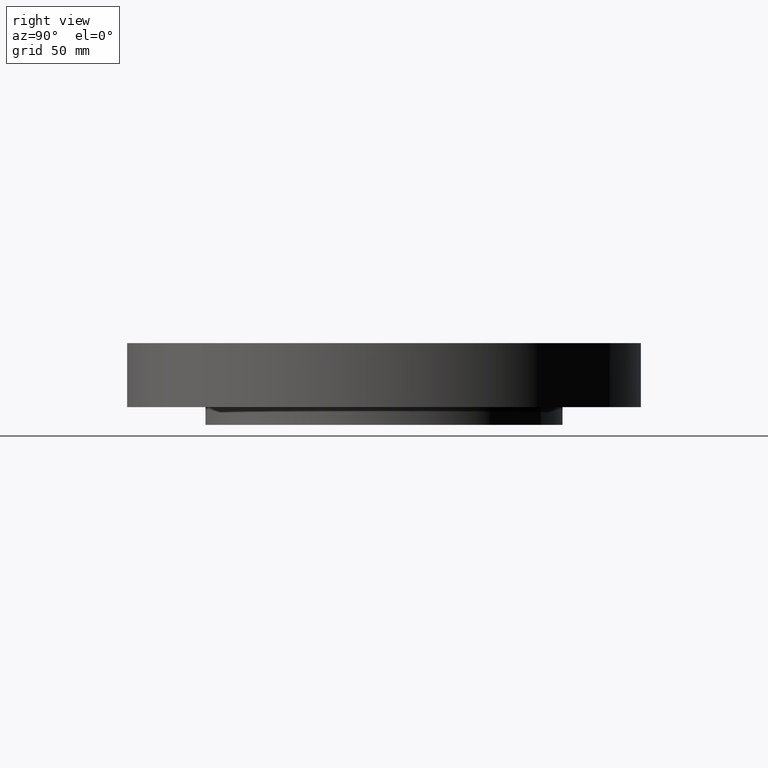
[diagram: clean part render]
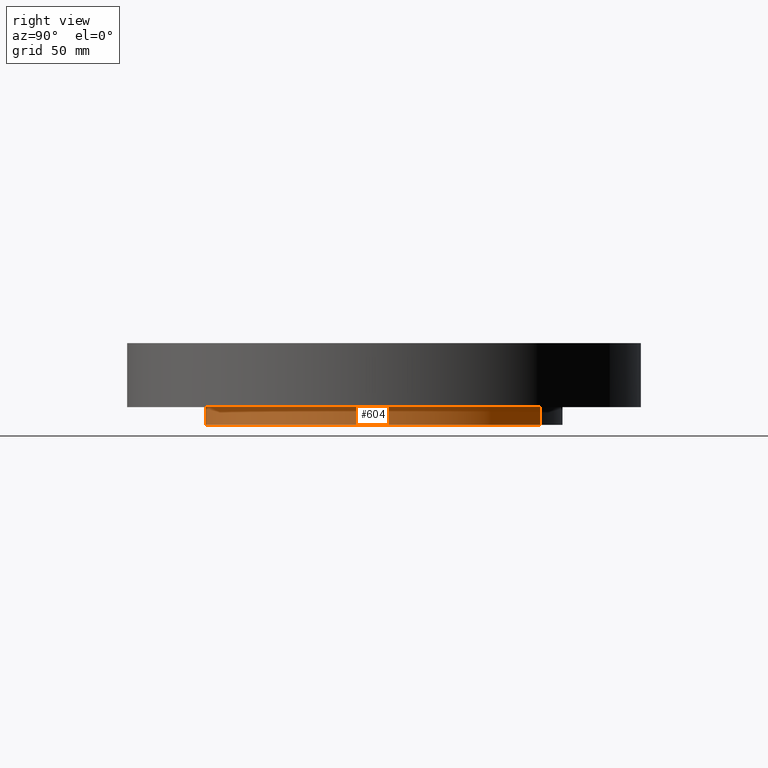
[diagram: same view with one face highlighted and labeled with its STEP entity id]
A machine part, right view. The second image highlights one B-rep face of the part: STEP entity #604.
In plain terms, the highlighted cylindrical surface (partial cylindrical patch) has radius 79.375 mm, axis along (0, 0, -1).
Its self-contained STEP definition (entity closure, byte-faithful):
#61=AXIS2_PLACEMENT_3D('Circle Axis2P3D',#59,#60,$) ;
#538=AXIS2_PLACEMENT_3D('Circle Axis2P3D',#536,#537,$) ;
#586=AXIS2_PLACEMENT_3D('Cylinder Axis2P3D',#583,#584,#585) ;
#59=CARTESIAN_POINT('Axis2P3D Location',(0.,0.,-0.312500000001)) ;
#63=CARTESIAN_POINT('Vertex',(1.49820480814,2.74244550592,-0.312500000001)) ;
#65=CARTESIAN_POINT('Vertex',(-1.49820480814,-2.74244550592,-0.312500000001)) ;
#536=CARTESIAN_POINT('Axis2P3D Location',(0.,0.,0.)) ;
#540=CARTESIAN_POINT('Vertex',(1.49820480814,2.74244550592,2.79741234551E-016)) ;
#542=CARTESIAN_POINT('Vertex',(-1.49820480814,-2.74244550592,2.79741234551E-016)) ;
#583=CARTESIAN_POINT('Axis2P3D Location',(0.,0.,0.403750000002)) ;
#588=CARTESIAN_POINT('Line Origine',(1.49820480814,2.74244550592,-0.156250000001)) ;
#593=CARTESIAN_POINT('Line Origine',(-1.49820480814,-2.74244550592,-0.156250000001)) ;
#60=DIRECTION('Axis2P3D Direction',(0.,0.,-0.0393700787402)) ;
#537=DIRECTION('Axis2P3D Direction',(0.,0.,-0.0393700787402)) ;
#584=DIRECTION('Axis2P3D Direction',(0.,0.,-0.0393700787402)) ;
#585=DIRECTION('Axis2P3D XDirection',(-0.0188750212049,-0.0345504945626,0.)) ;
#589=DIRECTION('Vector Direction',(0.,0.,-0.0393700787402)) ;
#594=DIRECTION('Vector Direction',(0.,0.,-0.0393700787402)) ;
#590=VECTOR('Line Direction',#589,0.0393700787402) ;
#595=VECTOR('Line Direction',#594,0.0393700787402) ;
#599=ORIENTED_EDGE('',*,*,#67,.F.) ;
#600=ORIENTED_EDGE('',*,*,#592,.T.) ;
#601=ORIENTED_EDGE('',*,*,#544,.T.) ;
#602=ORIENTED_EDGE('',*,*,#597,.F.) ;
#604=ADVANCED_FACE('PartBody',(#603),#587,.T.) ;
#62=CIRCLE('generated circle',#61,3.12500000001) ;
#539=CIRCLE('generated circle',#538,3.12500000001) ;
#587=CYLINDRICAL_SURFACE('generated cylinder',#586,3.12500000001) ;
#67=EDGE_CURVE('',#64,#66,#62,.T.) ;
#544=EDGE_CURVE('',#541,#543,#539,.T.) ;
#592=EDGE_CURVE('',#64,#541,#591,.F.) ;
#597=EDGE_CURVE('',#66,#543,#596,.F.) ;
#598=EDGE_LOOP('',(#599,#600,#601,#602)) ;
#603=FACE_OUTER_BOUND('',#598,.T.) ;
#591=LINE('Line',#588,#590) ;
#596=LINE('Line',#593,#595) ;
#64=VERTEX_POINT('',#63) ;
#66=VERTEX_POINT('',#65) ;
#541=VERTEX_POINT('',#540) ;
#543=VERTEX_POINT('',#542) ;